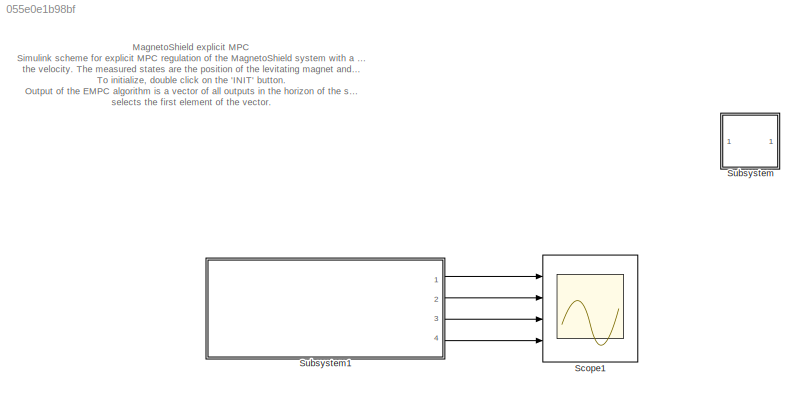
MODEL slx_055e0e1b98bf
KIND model
CONFIG AbsTol = auto
CONFIG EnableMultiTasking = on
CONFIG FixedStep = auto
CONFIG MaxStep = auto
CONFIG MinStep = auto
CONFIG RelTol = 1e-3
CONFIG SampleTimeConstraint = Unconstrained
CONFIG Solver = FixedStepAuto
CONFIG SolverName = FixedStepAuto
CONFIG StartTime = 0.0
CONFIG StopTime = 120
BLOCK [Scope] Scope1
  Floating = off
  NumInputPorts = 4
  Ports = [4]
  ScopeSpecificationString = Simulink.scopes.TimeScopeBlockCfg('CurrentConfiguration', extmgr.ConfigurationSet(extmgr.Configuration('Core','General UI',true),extmgr.Configuration('Core','Source UI',true),extmgr.Configuration('Sources','WiredSimulink',true,'DataLoggingSaveFormat','StructureWithTime'),extmgr.Configuration('Visuals','Time Domain',true,'SerializedDisplays',{struct('MinYLimReal','-0.00543','MaxYLimReal','0.04884',...<+3784ch>
BLOCK [SubSystem] Subsystem
  OpenFcn = clear; close all;clc;\ncd(fileparts(which(gcs)));\nload '../../../../../matlab/examples/MagnetoShield/MagnetoShield_Models_Greybox_SS';\n\n\nTs = 0.003;                      % Sampling
  Ports = []
  RequestExecContextInheritance = off
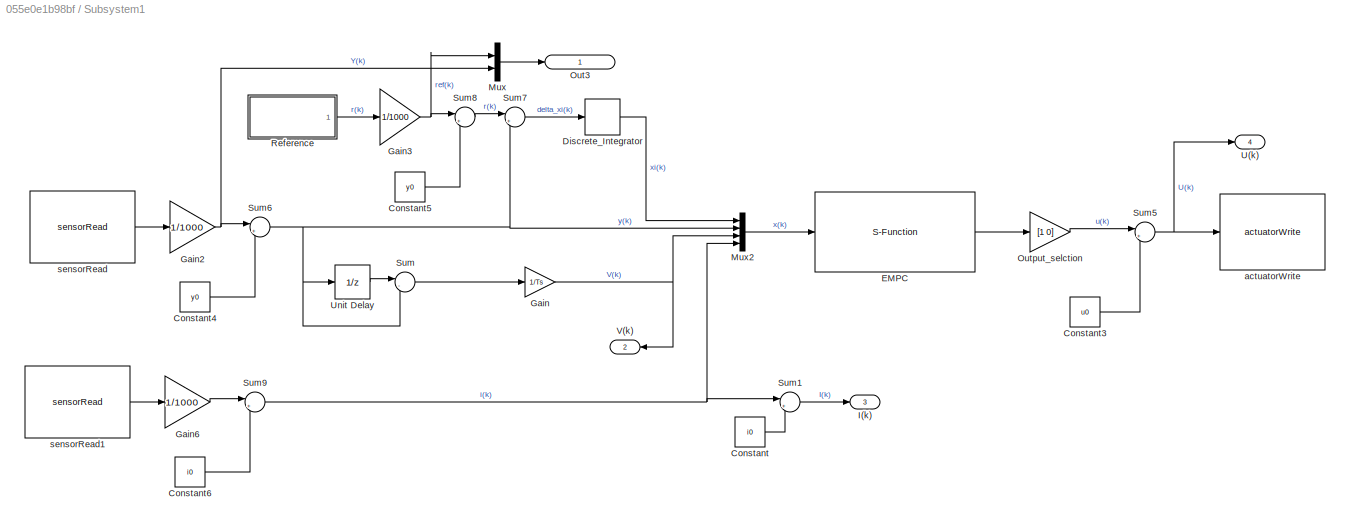
BLOCK [SubSystem] Subsystem1
  Ports = [0, 4]
  RequestExecContextInheritance = off
BLOCK [Constant] Subsystem1/Constant
  Value = i0
BLOCK [Constant] Subsystem1/Constant3
  Value = u0
BLOCK [Constant] Subsystem1/Constant4
  Value = y0
BLOCK [Constant] Subsystem1/Constant5
  Value = y0
BLOCK [Constant] Subsystem1/Constant6
  Value = i0
BLOCK [DiscreteIntegrator] Subsystem1/Discrete_Integrator
  ICPrevOutput = DiscIntNeverNeededParam
  ICPrevScaledInput = DiscIntNeverNeededParam
  InitialConditionSetting = Auto
  IntegratorMethod = Accumulation: Forward Euler
  LimitOutput = on
  LowerSaturationLimit = -100
  Ports = [1, 1]
  SampleTime = Ts
  UpperSaturationLimit = 100
BLOCK [S-Function] Subsystem1/EMPC
  EnableBusSupport = off
  FunctionName = ectrl_sfunc
  Ports = [1, 1]
  SFcnIsStateOwnerBlock = off
  SFunctionDeploymentMode = off
BLOCK [Gain] Subsystem1/Gain
  Gain = 1/Ts
  OutDataTypeStr = Inherit: Inherit via internal rule
  ParamDataTypeStr = Inherit: Inherit via internal rule
  SaturateOnIntegerOverflow = off
BLOCK [Gain] Subsystem1/Gain2
  Gain = 1/1000
  OutDataTypeStr = Inherit: Inherit via internal rule
  ParamDataTypeStr = Inherit: Inherit via internal rule
  SaturateOnIntegerOverflow = off
BLOCK [Gain] Subsystem1/Gain3
  Gain = 1/1000
  OutDataTypeStr = Inherit: Inherit via internal rule
  ParamDataTypeStr = Inherit: Inherit via internal rule
  SaturateOnIntegerOverflow = off
BLOCK [Gain] Subsystem1/Gain6
  Gain = 1/1000
  OutDataTypeStr = Inherit: Inherit via internal rule
  ParamDataTypeStr = Inherit: Inherit via internal rule
  SaturateOnIntegerOverflow = off
BLOCK [Outport] Subsystem1/I(k)
  IconDisplay = Signal name
  Port = 3
BLOCK [Mux] Subsystem1/Mux
  DisplayOption = bar
  Inputs = 2
  Ports = [2, 1]
BLOCK [Mux] Subsystem1/Mux2
  DisplayOption = bar
  Ports = [4, 1]
BLOCK [Outport] Subsystem1/Out3
  IconDisplay = Signal name
BLOCK [Gain] Subsystem1/Output_selction
  Gain = [1 0]
  Multiplication = Matrix(K*u)
  OutDataTypeStr = Inherit: Inherit via internal rule
  ParamDataTypeStr = Inherit: Inherit via internal rule
  SaturateOnIntegerOverflow = off
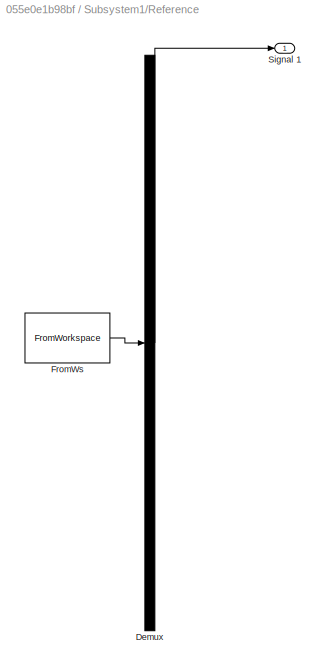
BLOCK [SubSystem] Subsystem1/Reference
  ClipboardFcn = sigbuilder_block('clipboard');
  CloseFcn = sigbuilder_block('close');
  ContinueFcn = sigbuilder_block('continue');
  CopyFcn = sigbuilder_block('copy');
  DeleteFcn = sigbuilder_block('delete');
  LoadFcn = sigbuilder_block('load');
  MaskHideContents = on
  ModelCloseFcn = sigbuilder_block('modelClose');
  NameChangeFcn = sigbuilder_block('namechange');
  OpenFcn = sigbuilder_block('open',[61.8 52.2 1012.8 447.6 ]);
  PauseFcn = sigbuilder_block('pause');
  Ports = [0, 1]
  PreSaveFcn = sigbuilder_block('preSave');
  RequestExecContextInheritance = off
  StartFcn = sigbuilder_block('start');
  StopFcn = sigbuilder_block('stop');
  Tag = STV Subsys
BLOCK [Demux] Subsystem1/Reference/Demux
  Outputs = 1
  Ports = [1, 1]
  Tag = STV Demux
BLOCK [FromWorkspace] Subsystem1/Reference/FromWs
  SampleTime = 0
  Tag = STV FromWs
  VariableName = tuvar
  ZeroCross = on
BLOCK [Outport] Subsystem1/Reference/Signal 1
  IconDisplay = Port number
  Tag = STV Outport
BLOCK [Sum] Subsystem1/Sum
  IconShape = round
  InputSameDT = off
  Inputs = |-+
  OutDataTypeStr = Inherit: Inherit via internal rule
  Ports = [2, 1]
  SaturateOnIntegerOverflow = off
BLOCK [Sum] Subsystem1/Sum1
  IconShape = round
  InputSameDT = off
  Inputs = |++
  OutDataTypeStr = Inherit: Inherit via internal rule
  Ports = [2, 1]
  SaturateOnIntegerOverflow = off
BLOCK [Sum] Subsystem1/Sum5
  IconShape = round
  InputSameDT = off
  Inputs = |++
  OutDataTypeStr = Inherit: Inherit via internal rule
  Ports = [2, 1]
  SaturateOnIntegerOverflow = off
BLOCK [Sum] Subsystem1/Sum6
  IconShape = round
  InputSameDT = off
  Inputs = |+-
  OutDataTypeStr = Inherit: Inherit via internal rule
  Ports = [2, 1]
  SaturateOnIntegerOverflow = off
BLOCK [Sum] Subsystem1/Sum7
  IconShape = round
  InputSameDT = off
  Inputs = |+-
  OutDataTypeStr = Inherit: Inherit via internal rule
  Ports = [2, 1]
  SaturateOnIntegerOverflow = off
BLOCK [Sum] Subsystem1/Sum8
  IconShape = round
  InputSameDT = off
  Inputs = |+-
  OutDataTypeStr = Inherit: Inherit via internal rule
  Ports = [2, 1]
  SaturateOnIntegerOverflow = off
BLOCK [Sum] Subsystem1/Sum9
  IconShape = round
  InputSameDT = off
  Inputs = |+-
  OutDataTypeStr = Inherit: Inherit via internal rule
  Ports = [2, 1]
  SaturateOnIntegerOverflow = off
BLOCK [Outport] Subsystem1/U(k)
  IconDisplay = Signal name
  Port = 4
BLOCK [UnitDelay] Subsystem1/Unit Delay
  HasFrameUpgradeWarning = on
  SampleTime = -1
BLOCK [Outport] Subsystem1/V(k)
  IconDisplay = Signal name
  Port = 2
BLOCK [Reference] Subsystem1/actuatorWrite  REF=MagnetoLibrary/actuatorWrite
  Ports = [1]
  SourceBlock = MagnetoLibrary/actuatorWrite
  SourceProductName = AutomationShield
BLOCK [Reference] Subsystem1/sensorRead  REF=MagnetoLibrary/sensorRead
  Ports = [0, 1]
  SourceBlock = MagnetoLibrary/sensorRead
  SourceProductName = AutomationShield
BLOCK [Reference] Subsystem1/sensorRead1  REF=MagnetoLibrary/sensorRead
  Ports = [0, 1]
  SourceBlock = MagnetoLibrary/sensorRead
  SourceProductName = AutomationShield
ANNOTATION (root): MagnetoShield explicit MPC Simulink scheme for explicit MPC regulation of the MagnetoShield system with a discrete approximation of the velocity. The measured states are the position of the levitating magnet and the current through the coil. To initialize, double click on the 'INIT' button. Output of the EMPC algorithm is a vector of all outputs in the horizon of the size N. The gain 'Output_selct...<+514ch>
LINE Subsystem1/Constant3:1 -> Subsystem1/Sum5:2
LINE Subsystem1/Constant4:1 -> Subsystem1/Sum6:2
LINE Subsystem1/Constant5:1 -> Subsystem1/Sum8:2
LINE Subsystem1/Constant6:1 -> Subsystem1/Sum9:2
LINE Subsystem1/Constant:1 -> Subsystem1/Sum1:2
LINE Subsystem1/Discrete_Integrator:1 -> Subsystem1/Mux2:1
LINE Subsystem1/EMPC:1 -> Subsystem1/Output_selction:1
NET Subsystem1/Gain2:1 -> Subsystem1/Mux:2, Subsystem1/Sum6:1
NET Subsystem1/Gain3:1 -> Subsystem1/Mux:1, Subsystem1/Sum8:1
LINE Subsystem1/Gain6:1 -> Subsystem1/Sum9:1
NET Subsystem1/Gain:1 -> Subsystem1/Mux2:3, Subsystem1/V(k):1
LINE Subsystem1/Mux2:1 -> Subsystem1/EMPC:1
LINE Subsystem1/Mux:1 -> Subsystem1/Out3:1
LINE Subsystem1/Output_selction:1 -> Subsystem1/Sum5:1
LINE Subsystem1/Reference:1 -> Subsystem1/Gain3:1
LINE Subsystem1/Sum1:1 -> Subsystem1/I(k):1
NET Subsystem1/Sum5:1 -> Subsystem1/U(k):1, Subsystem1/actuatorWrite:1
NET Subsystem1/Sum6:1 -> Subsystem1/Mux2:2, Subsystem1/Sum7:2, Subsystem1/Sum:2, Subsystem1/Unit Delay:1
LINE Subsystem1/Sum7:1 -> Subsystem1/Discrete_Integrator:1
LINE Subsystem1/Sum8:1 -> Subsystem1/Sum7:1
NET Subsystem1/Sum9:1 -> Subsystem1/Mux2:4, Subsystem1/Sum1:1
LINE Subsystem1/Sum:1 -> Subsystem1/Gain:1
LINE Subsystem1/Unit Delay:1 -> Subsystem1/Sum:1
LINE Subsystem1/sensorRead1:1 -> Subsystem1/Gain6:1
LINE Subsystem1/sensorRead:1 -> Subsystem1/Gain2:1
LINE Subsystem1:1 -> Scope1:1
LINE Subsystem1:2 -> Scope1:2
LINE Subsystem1:3 -> Scope1:3
LINE Subsystem1:4 -> Scope1:4
note: NET lines group one-source signal fan-out (src -> all destinations, sorted); 1:1 wires keep LINE
